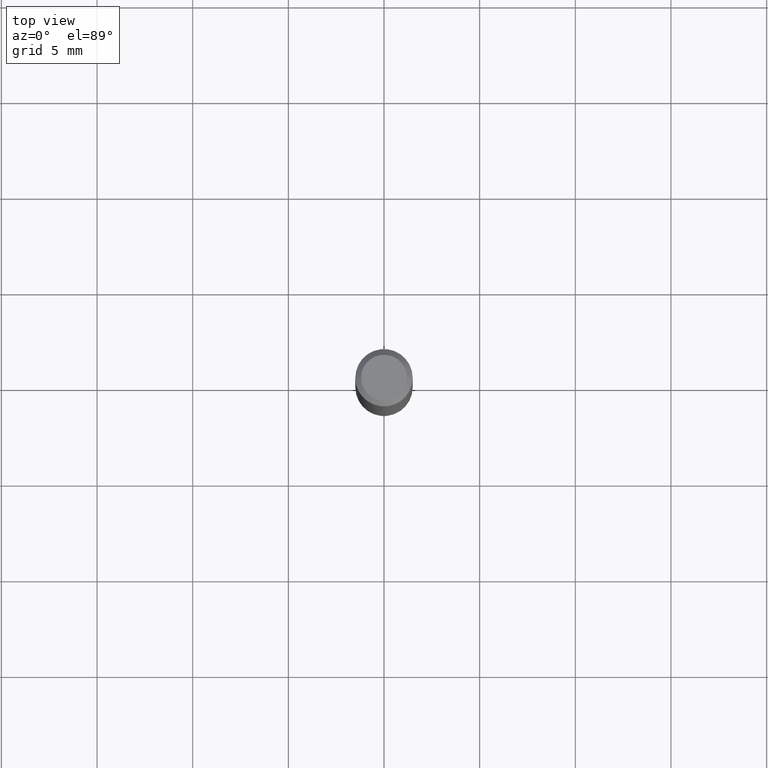
[diagram: clean part render]
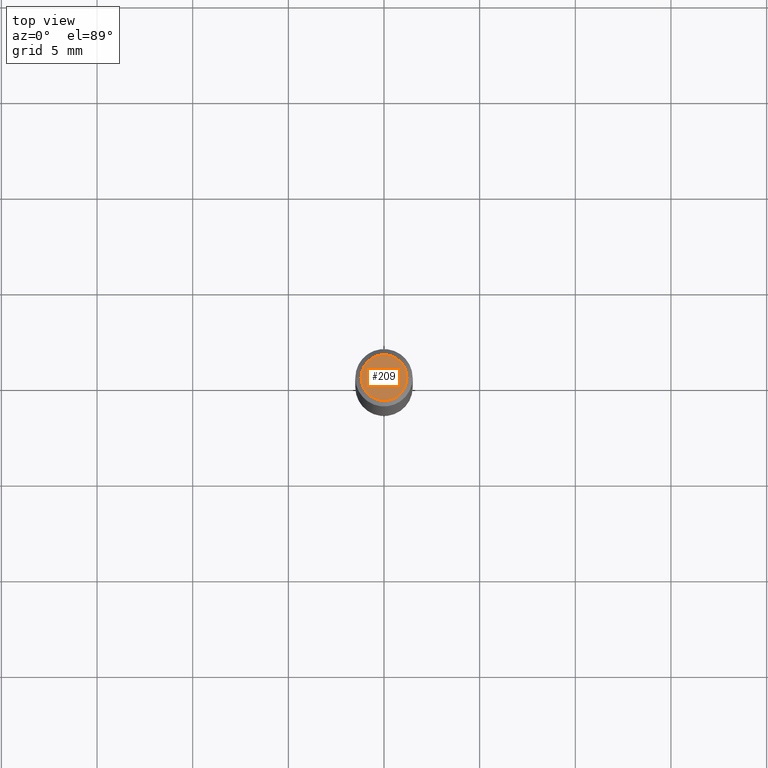
[diagram: same view with one face highlighted and labeled with its STEP entity id]
A machine part, top view. The second image highlights one B-rep face of the part: STEP entity #209.
In plain terms, the highlighted planar face has unit normal (0, -0, -1).
Its self-contained STEP definition (entity closure, byte-faithful):
#12 = AXIS2_PLACEMENT_3D ( 'NONE', #56, #436, #248 ) ;
#56 = CARTESIAN_POINT ( 'NONE',  ( 8.265746106709734507E-48, -1.180129479067563789E-33, -3.380025165646692144E-19 ) ) ;
#63 = DIRECTION ( 'NONE',  ( 2.438088387897960049E-29, -3.491481338843145188E-15, -1.000000000000000000 ) ) ;
#83 = DIRECTION ( 'NONE',  ( -2.445468806185136597E-29, 3.491481338843145583E-15, 1.000000000000000000 ) ) ;
#87 = CARTESIAN_POINT ( 'NONE',  ( 8.265746106709734507E-48, -1.180129479067563789E-33, -3.380025165646692144E-19 ) ) ;
#95 = CIRCLE ( 'NONE', #12, 0.04724000000000000421 ) ;
#106 = EDGE_LOOP ( 'NONE', ( #367, #393 ) ) ;
#144 = EDGE_CURVE ( 'NONE', #463, #279, #258, .T. ) ;
#184 = CARTESIAN_POINT ( 'NONE',  ( 0.04724000000000000421, -3.852183633974369345E-16, -3.380025165621689721E-19 ) ) ;
#199 = DIRECTION ( 'NONE',  ( 1.000000000000000000, -6.982962677686266711E-15, 4.876185090822587894E-29 ) ) ;
#203 = AXIS2_PLACEMENT_3D ( 'NONE', #391, #63, #383 ) ;
#209 = ADVANCED_FACE ( 'NONE', ( #350 ), #273, .F. ) ;
#222 = EDGE_CURVE ( 'NONE', #279, #463, #95, .T. ) ;
#248 = DIRECTION ( 'NONE',  ( 1.000000000000000000, -6.982962677686266711E-15, 4.876185090822587894E-29 ) ) ;
#258 = CIRCLE ( 'NONE', #296, 0.04724000000000000421 ) ;
#273 = PLANE ( 'NONE',  #203 ) ;
#279 = VERTEX_POINT ( 'NONE', #318 ) ;
#296 = AXIS2_PLACEMENT_3D ( 'NONE', #87, #83, #199 ) ;
#318 = CARTESIAN_POINT ( 'NONE',  ( -0.04724000000000000421, 3.504923541997677355E-16, -3.380025165670481712E-19 ) ) ;
#350 = FACE_OUTER_BOUND ( 'NONE', #106, .T. ) ;
#367 = ORIENTED_EDGE ( 'NONE', *, *, #222, .T. ) ;
#383 = DIRECTION ( 'NONE',  ( -1.000000000000000000, 6.982962677686265922E-15, -4.876176775795935793E-29 ) ) ;
#391 = CARTESIAN_POINT ( 'NONE',  ( 4.132873053354867254E-48, -5.900647395337818946E-34, -1.690012582823346072E-19 ) ) ;
#393 = ORIENTED_EDGE ( 'NONE', *, *, #144, .T. ) ;
#436 = DIRECTION ( 'NONE',  ( -2.445468806185136597E-29, 3.491481338843145583E-15, 1.000000000000000000 ) ) ;
#463 = VERTEX_POINT ( 'NONE', #184 ) ;